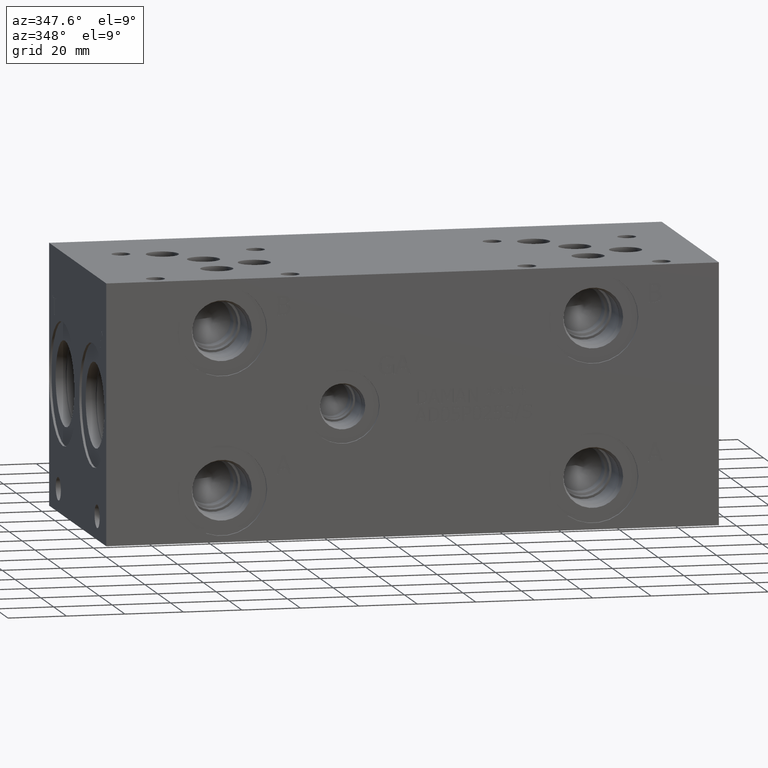
[diagram: clean part render]
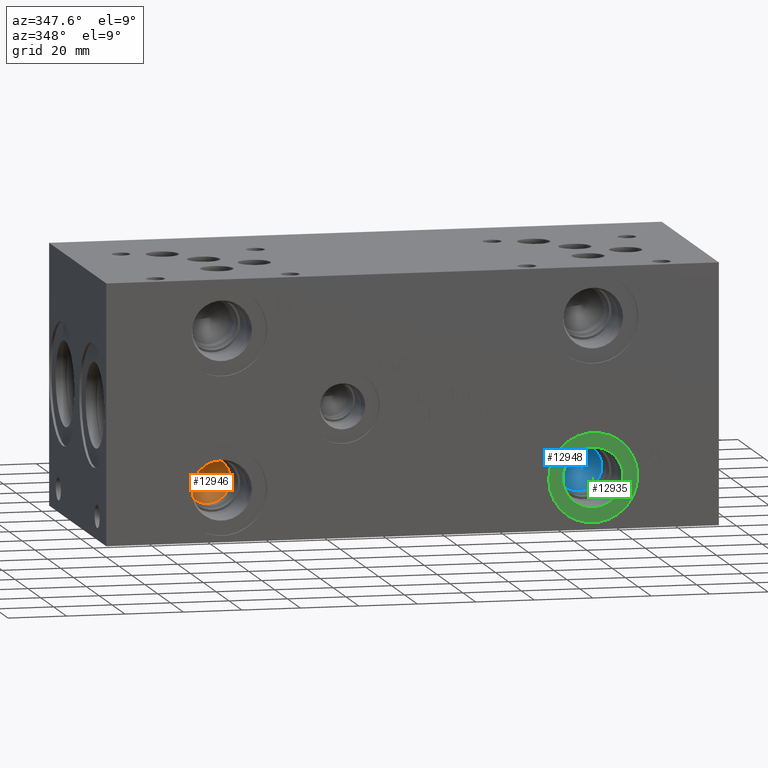
[diagram: same view with three faces highlighted in distinct colors, each labeled with its STEP entity id]
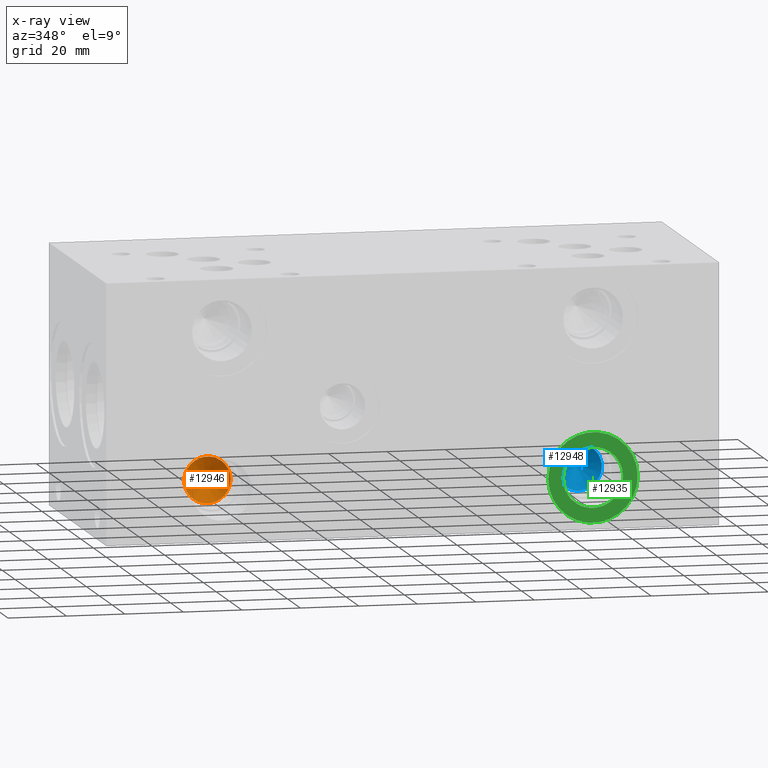
[diagram: x-ray of the same camera — body ghosted, the three highlighted faces saturated]
A machine part, auxiliary view with three faces highlighted in distinct colors.
The next image is the same camera in x-ray (body ghosted, the three faces saturated) — at least one of them is partly hidden behind the body in this view.
Their STEP definitions:

[orange] entity #12946 — the highlighted conical surface has half-angle 60 deg.
#42=CONICAL_SURFACE('',#13636,3.96875,1.0471975511966);
#332=CIRCLE('',#13637,7.9375);
#333=CIRCLE('',#13638,7.9375);
#1683=FACE_OUTER_BOUND('',#2433,.T.);
#2433=EDGE_LOOP('',(#11017,#11018,#11019,#11020));
#3635=LINE('',#22200,#4780);
#4780=VECTOR('',#16104,3.96875);
#5953=VERTEX_POINT('',#22196);
#5954=VERTEX_POINT('',#22197);
#5955=VERTEX_POINT('',#22199);
#7698=EDGE_CURVE('',#5953,#5954,#332,.T.);
#7699=EDGE_CURVE('',#5954,#5955,#3635,.T.);
#7700=EDGE_CURVE('',#5954,#5953,#333,.T.);
#11017=ORIENTED_EDGE('',*,*,#7698,.T.);
#11018=ORIENTED_EDGE('',*,*,#7699,.T.);
#11019=ORIENTED_EDGE('',*,*,#7699,.F.);
#11020=ORIENTED_EDGE('',*,*,#7700,.T.);
#12946=ADVANCED_FACE('',(#1683),#42,.F.);
#13636=AXIS2_PLACEMENT_3D('',#22195,#16100,#16101);
#13637=AXIS2_PLACEMENT_3D('',#22198,#16102,#16103);
#13638=AXIS2_PLACEMENT_3D('',#22201,#16105,#16106);
#16100=DIRECTION('center_axis',(0.,-1.,0.));
#16101=DIRECTION('ref_axis',(1.,0.,0.));
#16102=DIRECTION('center_axis',(0.,-1.,0.));
#16103=DIRECTION('ref_axis',(1.,0.,0.));
#16104=DIRECTION('',(0.866025403784439,0.5,1.06057523872491E-16));
#16105=DIRECTION('center_axis',(0.,-1.,0.));
#16106=DIRECTION('ref_axis',(1.,0.,0.));
#22195=CARTESIAN_POINT('Origin',(39.6748,25.5142788808463,17.4752));
#22196=CARTESIAN_POINT('',(47.6123,23.22292,17.4752));
#22197=CARTESIAN_POINT('',(31.7373,23.22292,17.4752));
#22198=CARTESIAN_POINT('Origin',(39.6748,23.22292,17.4752));
#22199=CARTESIAN_POINT('',(39.6748,27.8056377616927,17.4752));
#22200=CARTESIAN_POINT('',(35.70605,25.5142788808463,17.4752));
#22201=CARTESIAN_POINT('Origin',(39.6748,23.22292,17.4752));

[blue] entity #12948 — the highlighted conical surface has half-angle 60 deg.
#43=CONICAL_SURFACE('',#13641,3.96875,1.0471975511966);
#335=CIRCLE('',#13642,7.9375);
#336=CIRCLE('',#13643,7.9375);
#1685=FACE_OUTER_BOUND('',#2435,.T.);
#2435=EDGE_LOOP('',(#11026,#11027,#11028,#11029));
#3637=LINE('',#22211,#4782);
#4782=VECTOR('',#16116,3.96875);
#5957=VERTEX_POINT('',#22207);
#5958=VERTEX_POINT('',#22208);
#5959=VERTEX_POINT('',#22210);
#7703=EDGE_CURVE('',#5957,#5958,#335,.T.);
#7704=EDGE_CURVE('',#5958,#5959,#3637,.T.);
#7705=EDGE_CURVE('',#5958,#5957,#336,.T.);
#11026=ORIENTED_EDGE('',*,*,#7703,.T.);
#11027=ORIENTED_EDGE('',*,*,#7704,.T.);
#11028=ORIENTED_EDGE('',*,*,#7704,.F.);
#11029=ORIENTED_EDGE('',*,*,#7705,.T.);
#12948=ADVANCED_FACE('',(#1685),#43,.F.);
#13641=AXIS2_PLACEMENT_3D('',#22206,#16112,#16113);
#13642=AXIS2_PLACEMENT_3D('',#22209,#16114,#16115);
#13643=AXIS2_PLACEMENT_3D('',#22212,#16117,#16118);
#16112=DIRECTION('center_axis',(0.,-1.,0.));
#16113=DIRECTION('ref_axis',(1.,0.,0.));
#16114=DIRECTION('center_axis',(0.,-1.,0.));
#16115=DIRECTION('ref_axis',(1.,0.,0.));
#16116=DIRECTION('',(0.866025403784439,0.5,1.06057523872491E-16));
#16117=DIRECTION('center_axis',(0.,-1.,0.));
#16118=DIRECTION('ref_axis',(1.,0.,0.));
#22206=CARTESIAN_POINT('Origin',(166.6748,25.5142788808463,17.4752));
#22207=CARTESIAN_POINT('',(174.6123,23.22292,17.4752));
#22208=CARTESIAN_POINT('',(158.7373,23.22292,17.4752));
#22209=CARTESIAN_POINT('Origin',(166.6748,23.22292,17.4752));
#22210=CARTESIAN_POINT('',(166.6748,27.8056377616927,17.4752));
#22211=CARTESIAN_POINT('',(162.70605,25.5142788808463,17.4752));
#22212=CARTESIAN_POINT('Origin',(166.6748,23.22292,17.4752));

[green] entity #12935 — the highlighted planar face has unit normal (0, 1, 0).
#311=CIRCLE('',#13604,15.3162);
#312=CIRCLE('',#13605,15.3162);
#313=CIRCLE('',#13607,10.2997);
#314=CIRCLE('',#13608,10.2997);
#544=FACE_BOUND('',#2421,.T.);
#1672=FACE_OUTER_BOUND('',#2420,.T.);
#2420=EDGE_LOOP('',(#10960,#10961));
#2421=EDGE_LOOP('',(#10962,#10963));
#5931=VERTEX_POINT('',#22131);
#5932=VERTEX_POINT('',#22133);
#5933=VERTEX_POINT('',#22137);
#5934=VERTEX_POINT('',#22138);
#7668=EDGE_CURVE('',#5931,#5932,#311,.T.);
#7669=EDGE_CURVE('',#5932,#5931,#312,.T.);
#7670=EDGE_CURVE('',#5933,#5934,#313,.T.);
#7671=EDGE_CURVE('',#5934,#5933,#314,.T.);
#10960=ORIENTED_EDGE('',*,*,#7669,.F.);
#10961=ORIENTED_EDGE('',*,*,#7668,.F.);
#10962=ORIENTED_EDGE('',*,*,#7670,.T.);
#10963=ORIENTED_EDGE('',*,*,#7671,.T.);
#11865=PLANE('',#13606);
#12935=ADVANCED_FACE('',(#1672,#544),#11865,.F.);
#13604=AXIS2_PLACEMENT_3D('',#22134,#16027,#16028);
#13605=AXIS2_PLACEMENT_3D('',#22135,#16029,#16030);
#13606=AXIS2_PLACEMENT_3D('',#22136,#16031,#16032);
#13607=AXIS2_PLACEMENT_3D('',#22139,#16033,#16034);
#13608=AXIS2_PLACEMENT_3D('',#22140,#16035,#16036);
#16027=DIRECTION('center_axis',(0.,1.,0.));
#16028=DIRECTION('ref_axis',(1.,0.,0.));
#16029=DIRECTION('center_axis',(0.,1.,0.));
#16030=DIRECTION('ref_axis',(1.,0.,0.));
#16031=DIRECTION('center_axis',(0.,1.,0.));
#16032=DIRECTION('ref_axis',(0.,0.,1.));
#16033=DIRECTION('center_axis',(0.,1.,0.));
#16034=DIRECTION('ref_axis',(1.,0.,0.));
#16035=DIRECTION('center_axis',(0.,1.,0.));
#16036=DIRECTION('ref_axis',(1.,0.,0.));
#22131=CARTESIAN_POINT('',(151.3586,0.7874,17.4752));
#22133=CARTESIAN_POINT('',(181.991,0.7874,17.4752));
#22134=CARTESIAN_POINT('Origin',(166.6748,0.7874,17.4752));
#22135=CARTESIAN_POINT('Origin',(166.6748,0.7874,17.4752));
#22136=CARTESIAN_POINT('Origin',(176.9745,0.7874,17.4752));
#22137=CARTESIAN_POINT('',(176.9745,0.7874,17.4752));
#22138=CARTESIAN_POINT('',(156.3751,0.787399999999999,17.4752));
#22139=CARTESIAN_POINT('Origin',(166.6748,0.7874,17.4752));
#22140=CARTESIAN_POINT('Origin',(166.6748,0.7874,17.4752));